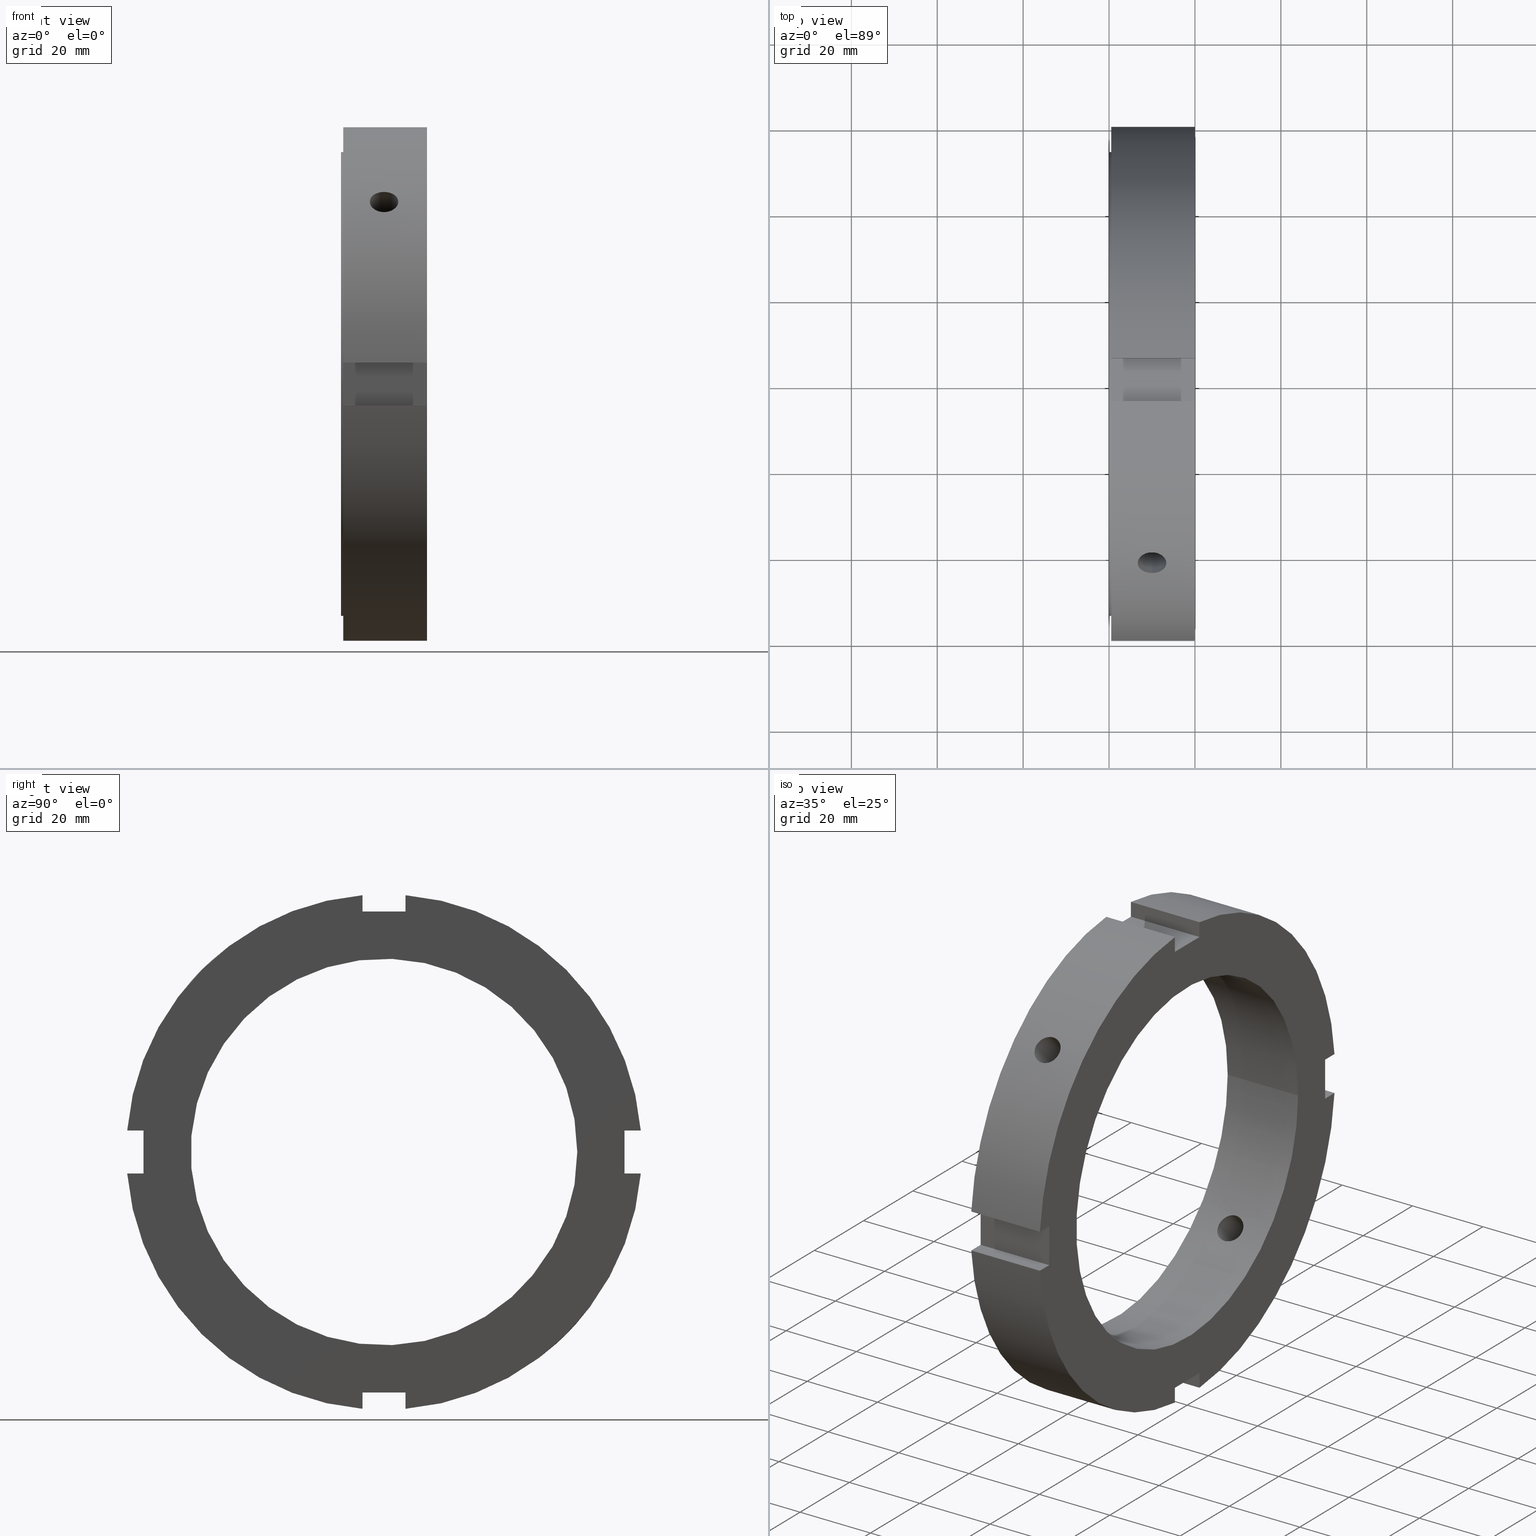
[diagram: canonical four-view strip — front | top / right | iso, engineering-drawing reading convention]
A machine part, canonical four-view strip (front | top / right | iso — engineering-drawing reading convention). The complete STEP part file that produces these views, byte-faithful:
ISO-10303-21;
HEADER;
/****************************************************************
 * Generated by software with PDE/Lib inside                    *
 * PDElib Version v51a, created Thu 01/14/2010                  *
 * ITI Transcendata (http://www.transcendata.com/)              *
 ****************************************************************/
FILE_DESCRIPTION((''),'2;1');
FILE_NAME('C:\\Users\\fkd-ct1n\\Desktop\\FKD ZM 90.stp','2014-07-16T12:00:12',('fkd-ct1n'),(''),'Autodesk Inventor 2011','Autodesk Inventor 2011','');
FILE_SCHEMA(('AUTOMOTIVE_DESIGN { 1 0 10303 214 1 1 1 1 }'));
ENDSEC;
DATA;
#5=APPLICATION_CONTEXT('automotive design');
#6=APPLICATION_PROTOCOL_DEFINITION('International Standard','automotive_design',2001,#5);
#7=PRODUCT_CONTEXT('',#5,'mechanical');
#8=PRODUCT('FKD ZM 90','FKD ZM 90',$,(#7));
#9=PRODUCT_RELATED_PRODUCT_CATEGORY('part',$,(#8));
#10=PRODUCT_DEFINITION_FORMATION('',$,#8);
#11=PRODUCT_DEFINITION_CONTEXT('part definition',#5,'design');
#12=PRODUCT_DEFINITION('',$,#10,#11);
#18=(NAMED_UNIT(*)PLANE_ANGLE_UNIT()SI_UNIT($,.RADIAN.));
#19=DIMENSIONAL_EXPONENTS(0.0,0.0,0.0,0.0,0.0,0.0,0.0);
#20=PLANE_ANGLE_MEASURE_WITH_UNIT(PLANE_ANGLE_MEASURE(0.017453292500000),#18);
#24=(CONVERSION_BASED_UNIT('DEGREE',#20)NAMED_UNIT(#19)PLANE_ANGLE_UNIT());
#28=(NAMED_UNIT(*)SI_UNIT($,.STERADIAN.)SOLID_ANGLE_UNIT());
#32=(LENGTH_UNIT()NAMED_UNIT(*)SI_UNIT(.MILLI.,.METRE.));
#34=UNCERTAINTY_MEASURE_WITH_UNIT(LENGTH_MEASURE(0.010000000000000),#32,'DISTANCE_ACCURACY_VALUE','');
#36=(GEOMETRIC_REPRESENTATION_CONTEXT(3)GLOBAL_UNCERTAINTY_ASSIGNED_CONTEXT((#34))GLOBAL_UNIT_ASSIGNED_CONTEXT((#24,#28,#32))REPRESENTATION_CONTEXT('None','None'));
#37=AXIS2_PLACEMENT_3D('',#38,#39,#40);
#38=CARTESIAN_POINT('',(0.0,0.0,0.0));
#39=DIRECTION('',(0.0,0.0,1.0));
#40=DIRECTION('',(1.0,0.0,0.0));
#41=SHAPE_REPRESENTATION('',(#37),#36);
#42=PRODUCT_DEFINITION_SHAPE('','',#12);
#43=SHAPE_DEFINITION_REPRESENTATION(#42,#41);
#49=(NAMED_UNIT(*)PLANE_ANGLE_UNIT()SI_UNIT($,.RADIAN.));
#50=DIMENSIONAL_EXPONENTS(0.0,0.0,0.0,0.0,0.0,0.0,0.0);
#51=PLANE_ANGLE_MEASURE_WITH_UNIT(PLANE_ANGLE_MEASURE(0.017453292500000),#49);
#55=(CONVERSION_BASED_UNIT('DEGREE',#51)NAMED_UNIT(#50)PLANE_ANGLE_UNIT());
#59=(NAMED_UNIT(*)SI_UNIT($,.STERADIAN.)SOLID_ANGLE_UNIT());
#63=(LENGTH_UNIT()NAMED_UNIT(*)SI_UNIT(.MILLI.,.METRE.));
#65=UNCERTAINTY_MEASURE_WITH_UNIT(LENGTH_MEASURE(0.000001000000000),#63,'DISTANCE_ACCURACY_VALUE','');
#67=(GEOMETRIC_REPRESENTATION_CONTEXT(3)GLOBAL_UNCERTAINTY_ASSIGNED_CONTEXT((#65))GLOBAL_UNIT_ASSIGNED_CONTEXT((#55,#59,#63))REPRESENTATION_CONTEXT('','3D'));
#68=CARTESIAN_POINT('',(9.999999999999991,-120.415945787922940,120.415945787922990));
#69=DIRECTION('',(0.0,-0.707106781186547,0.707106781186548));
#70=DIRECTION('',(1.0,0.0,0.0));
#71=AXIS2_PLACEMENT_3D('',#68,#69,#70);
#72=CYLINDRICAL_SURFACE('',#71,3.323500000000000);
#73=CARTESIAN_POINT('',(9.999999999999991,-44.711339125974661,40.011200351427682));
#74=VERTEX_POINT('',#73);
#75=CARTESIAN_POINT('',(9.999999999999989,-44.711339125974654,40.011200351427703));
#76=CARTESIAN_POINT('',(9.582602221231237,-44.711339125974654,40.011200351427703));
#77=CARTESIAN_POINT('',(9.137441260602060,-44.655743958096878,40.073599433775541));
#78=CARTESIAN_POINT('',(8.318624826173176,-44.428182373753664,40.325741790524454));
#79=CARTESIAN_POINT('',(7.944962107137318,-44.256042167446601,40.515304626723662));
#80=CARTESIAN_POINT('',(7.354899212241063,-43.855159526672516,40.948896934564978));
#81=CARTESIAN_POINT('',(7.099136467179797,-43.599645534778404,41.221821887794626));
#82=CARTESIAN_POINT('',(6.759934497809716,-43.032931829314769,41.813089681101580));
#83=CARTESIAN_POINT('',(6.676499999999991,-42.721551577050967,42.131262165334732));
#84=CARTESIAN_POINT('',(6.676499999999991,-42.131262165334689,42.721551577051009));
#85=CARTESIAN_POINT('',(6.759934497809716,-41.813089681101530,43.032931829314805));
#86=CARTESIAN_POINT('',(7.099136467179788,-41.221821887794604,43.599645534778439));
#87=CARTESIAN_POINT('',(7.354899212241064,-40.948896934564956,43.855159526672537));
#88=CARTESIAN_POINT('',(7.944962107137310,-40.515304626723641,44.256042167446623));
#89=CARTESIAN_POINT('',(8.318624826173158,-40.325741790524418,44.428182373753685));
#90=CARTESIAN_POINT('',(9.137441260602046,-40.073599433775506,44.655743958096906));
#91=CARTESIAN_POINT('',(9.582602221231236,-40.011200351427675,44.711339125974675));
#92=CARTESIAN_POINT('',(10.417397778768747,-40.011200351427675,44.711339125974675));
#93=CARTESIAN_POINT('',(10.862558739397937,-40.073599433775506,44.655743958096906));
#94=CARTESIAN_POINT('',(11.681375173826824,-40.325741790524418,44.428182373753685));
#95=CARTESIAN_POINT('',(12.055037892862670,-40.515304626723641,44.256042167446623));
#96=CARTESIAN_POINT('',(12.645100787758917,-40.948896934564956,43.855159526672537));
#97=CARTESIAN_POINT('',(12.900863532820193,-41.221821887794604,43.599645534778439));
#98=CARTESIAN_POINT('',(13.240065502190264,-41.813089681101530,43.032931829314805));
#99=CARTESIAN_POINT('',(13.323499999999990,-42.131262165334689,42.721551577051009));
#100=CARTESIAN_POINT('',(13.323499999999990,-42.721551577050967,42.131262165334732));
#101=CARTESIAN_POINT('',(13.240065502190264,-43.032931829314769,41.813089681101580));
#102=CARTESIAN_POINT('',(12.900863532820185,-43.599645534778404,41.221821887794626));
#103=CARTESIAN_POINT('',(12.645100787758921,-43.855159526672516,40.948896934564978));
#104=CARTESIAN_POINT('',(12.055037892862668,-44.256042167446601,40.515304626723662));
#105=CARTESIAN_POINT('',(11.681375173826808,-44.428182373753657,40.325741790524454));
#106=CARTESIAN_POINT('',(10.862558739397922,-44.655743958096863,40.073599433775541));
#107=CARTESIAN_POINT('',(10.417397778768741,-44.711339125974654,40.011200351427703));
#108=CARTESIAN_POINT('',(9.999999999999989,-44.711339125974654,40.011200351427703));
#109=B_SPLINE_CURVE_WITH_KNOTS('',3,(#75,#76,#77,#78,#79,#80,#81,#82,#83,#84,#85,#86,#87,#88,#89,#90,#91,#92,#93,#94,#95,#96,#97,#98,#99,#100,#101,#102,#103,#104,#105,#106,#107,#108),.UNSPECIFIED.,.T.,.U.,(4,2,2,2,2,2,2,2,2,2,2,2,2,2,2,2,4),(0.0,0.125219333630626,0.250438667261252,0.375657961027413,0.500877254793573,0.626096548559732,0.751315842325891,0.876535175956518,1.001754509587145,1.126973843217771,1.252193176848398,1.377412470614556,1.502631764380715,1.627851058146876,1.753070351913037,1.878289685543663,2.003509019174289),.UNSPECIFIED.);
#110=EDGE_CURVE('',#74,#74,#109,.T.);
#111=ORIENTED_EDGE('',*,*,#110,.F.);
#112=EDGE_LOOP('',(#111));
#113=FACE_OUTER_BOUND('',#112,.T.);
#114=CARTESIAN_POINT('',(9.999999999999991,-34.082973034355639,29.382834259808671));
#115=VERTEX_POINT('',#114);
#116=CARTESIAN_POINT('',(9.999999999999989,-34.082973034355632,29.382834259808686));
#117=CARTESIAN_POINT('',(10.417469380012360,-34.082973034355632,29.382834259808686));
#118=CARTESIAN_POINT('',(10.862661046645325,-34.028499303682750,29.446394307609175));
#119=CARTESIAN_POINT('',(11.681457677599141,-33.805037457042751,29.702665621787002));
#120=CARTESIAN_POINT('',(12.055075574637417,-33.635817881261559,29.895133630615518));
#121=CARTESIAN_POINT('',(12.645062902433306,-33.240450532774858,30.334134362726012));
#122=CARTESIAN_POINT('',(12.900814875656481,-32.987873059930429,30.609932573919274));
#123=CARTESIAN_POINT('',(13.240037625821708,-32.425269157335073,31.205282585973180));
#124=CARTESIAN_POINT('',(13.323499999999990,-32.115000285259555,31.524610021529718));
#125=CARTESIAN_POINT('',(13.323499999999990,-31.524610021529682,32.115000285259597));
#126=CARTESIAN_POINT('',(13.240037625821710,-31.205282585973141,32.425269157335109));
#127=CARTESIAN_POINT('',(12.900814875656488,-30.609932573919231,32.987873059930457));
#128=CARTESIAN_POINT('',(12.645062902433304,-30.334134362725980,33.240450532774879));
#129=CARTESIAN_POINT('',(12.055075574637421,-29.895133630615483,33.635817881261588));
#130=CARTESIAN_POINT('',(11.681457677599148,-29.702665621786963,33.805037457042793));
#131=CARTESIAN_POINT('',(10.862661046645332,-29.446394307609133,34.028499303682786));
#132=CARTESIAN_POINT('',(10.417469380012365,-29.382834259808650,34.082973034355661));
#133=CARTESIAN_POINT('',(9.582530619987617,-29.382834259808650,34.082973034355661));
#134=CARTESIAN_POINT('',(9.137338953354650,-29.446394307609136,34.028499303682786));
#135=CARTESIAN_POINT('',(8.318542322400836,-29.702665621786963,33.805037457042793));
#136=CARTESIAN_POINT('',(7.944924425362562,-29.895133630615483,33.635817881261588));
#137=CARTESIAN_POINT('',(7.354937097566678,-30.334134362725980,33.240450532774879));
#138=CARTESIAN_POINT('',(7.099185124343492,-30.609932573919231,32.987873059930457));
#139=CARTESIAN_POINT('',(6.759962374178270,-31.205282585973141,32.425269157335109));
#140=CARTESIAN_POINT('',(6.676499999999991,-31.524610021529682,32.115000285259597));
#141=CARTESIAN_POINT('',(6.676499999999991,-32.115000285259555,31.524610021529718));
#142=CARTESIAN_POINT('',(6.759962374178273,-32.425269157335073,31.205282585973180));
#143=CARTESIAN_POINT('',(7.099185124343500,-32.987873059930429,30.609932573919266));
#144=CARTESIAN_POINT('',(7.354937097566676,-33.240450532774858,30.334134362726012));
#145=CARTESIAN_POINT('',(7.944924425362563,-33.635817881261559,29.895133630615518));
#146=CARTESIAN_POINT('',(8.318542322400839,-33.805037457042751,29.702665621787002));
#147=CARTESIAN_POINT('',(9.137338953354654,-34.028499303682750,29.446394307609175));
#148=CARTESIAN_POINT('',(9.582530619987619,-34.082973034355632,29.382834259808686));
#149=CARTESIAN_POINT('',(9.999999999999993,-34.082973034355632,29.382834259808686));
#150=B_SPLINE_CURVE_WITH_KNOTS('',3,(#116,#117,#118,#119,#120,#121,#122,#123,#124,#125,#126,#127,#128,#129,#130,#131,#132,#133,#134,#135,#136,#137,#138,#139,#140,#141,#142,#143,#144,#145,#146,#147,#148,#149),.UNSPECIFIED.,.T.,.U.,(4,2,2,2,2,2,2,2,2,2,2,2,2,2,2,2,4),(0.0,0.125240814003712,0.250481628007423,0.375722315716397,0.500963003425371,0.626203691134343,0.751444378843316,0.876685192847028,1.001926006850740,1.127166820854452,1.252407634858164,1.377648322567137,1.502889010276109,1.628129697985083,1.753370385694057,1.878611199697768,2.003852013701480),.UNSPECIFIED.);
#151=EDGE_CURVE('',#115,#115,#150,.T.);
#152=ORIENTED_EDGE('',*,*,#151,.F.);
#153=EDGE_LOOP('',(#152));
#154=FACE_BOUND('',#153,.T.);
#155=ADVANCED_FACE('',(#113,#154),#72,.F.);
#156=CARTESIAN_POINT('',(9.999999999999991,120.415945787922960,-120.415945787922980));
#157=DIRECTION('',(0.0,-0.707106781186547,0.707106781186548));
#158=DIRECTION('',(1.0,0.0,0.0));
#159=AXIS2_PLACEMENT_3D('',#156,#157,#158);
#160=CYLINDRICAL_SURFACE('',#159,3.323500000000000);
#161=CARTESIAN_POINT('',(9.999999999999991,40.011200351427675,-44.711339125974668));
#162=VERTEX_POINT('',#161);
#163=CARTESIAN_POINT('',(9.999999999999993,40.011200351427689,-44.711339125974668));
#164=CARTESIAN_POINT('',(10.417397778768747,40.011200351427689,-44.711339125974668));
#165=CARTESIAN_POINT('',(10.862558739397937,40.073599433775520,-44.655743958096885));
#166=CARTESIAN_POINT('',(11.681375173826822,40.325741790524432,-44.428182373753664));
#167=CARTESIAN_POINT('',(12.055037892862670,40.515304626723641,-44.256042167446608));
#168=CARTESIAN_POINT('',(12.645100787758919,40.948896934564971,-43.855159526672523));
#169=CARTESIAN_POINT('',(12.900863532820193,41.221821887794619,-43.599645534778418));
#170=CARTESIAN_POINT('',(13.240065502190262,41.813089681101552,-43.032931829314791));
#171=CARTESIAN_POINT('',(13.323499999999990,42.131262165334711,-42.721551577050995));
#172=CARTESIAN_POINT('',(13.323499999999990,42.721551577050988,-42.131262165334711));
#173=CARTESIAN_POINT('',(13.240065502190264,43.032931829314791,-41.813089681101559));
#174=CARTESIAN_POINT('',(12.900863532820185,43.599645534778418,-41.221821887794611));
#175=CARTESIAN_POINT('',(12.645100787758922,43.855159526672537,-40.948896934564956));
#176=CARTESIAN_POINT('',(12.055037892862668,44.256042167446623,-40.515304626723641));
#177=CARTESIAN_POINT('',(11.681375173826812,44.428182373753685,-40.325741790524454));
#178=CARTESIAN_POINT('',(10.862558739397922,44.655743958096899,-40.073599433775541));
#179=CARTESIAN_POINT('',(10.417397778768745,44.711339125974661,-40.011200351427689));
#180=CARTESIAN_POINT('',(9.582602221231239,44.711339125974661,-40.011200351427689));
#181=CARTESIAN_POINT('',(9.137441260602060,44.655743958096892,-40.073599433775527));
#182=CARTESIAN_POINT('',(8.318624826173174,44.428182373753685,-40.325741790524447));
#183=CARTESIAN_POINT('',(7.944962107137315,44.256042167446623,-40.515304626723641));
#184=CARTESIAN_POINT('',(7.354899212241061,43.855159526672537,-40.948896934564956));
#185=CARTESIAN_POINT('',(7.099136467179795,43.599645534778418,-41.221821887794611));
#186=CARTESIAN_POINT('',(6.759934497809716,43.032931829314791,-41.813089681101559));
#187=CARTESIAN_POINT('',(6.676499999999991,42.721551577050988,-42.131262165334711));
#188=CARTESIAN_POINT('',(6.676499999999991,42.131262165334711,-42.721551577050995));
#189=CARTESIAN_POINT('',(6.759934497809720,41.813089681101552,-43.032931829314791));
#190=CARTESIAN_POINT('',(7.099136467179791,41.221821887794619,-43.599645534778418));
#191=CARTESIAN_POINT('',(7.354899212241062,40.948896934564971,-43.855159526672523));
#192=CARTESIAN_POINT('',(7.944962107137311,40.515304626723641,-44.256042167446608));
#193=CARTESIAN_POINT('',(8.318624826173162,40.325741790524432,-44.428182373753664));
#194=CARTESIAN_POINT('',(9.137441260602049,40.073599433775520,-44.655743958096885));
#195=CARTESIAN_POINT('',(9.582602221231237,40.011200351427682,-44.711339125974668));
#196=CARTESIAN_POINT('',(9.999999999999993,40.011200351427682,-44.711339125974668));
#197=B_SPLINE_CURVE_WITH_KNOTS('',3,(#163,#164,#165,#166,#167,#168,#169,#170,#171,#172,#173,#174,#175,#176,#177,#178,#179,#180,#181,#182,#183,#184,#185,#186,#187,#188,#189,#190,#191,#192,#193,#194,#195,#196),.UNSPECIFIED.,.T.,.U.,(4,2,2,2,2,2,2,2,2,2,2,2,2,2,2,2,4),(0.0,0.125219333630626,0.250438667261253,0.375657961027412,0.500877254793571,0.626096548559732,0.751315842325893,0.876535175956519,1.001754509587145,1.126973843217770,1.252193176848396,1.377412470614557,1.502631764380718,1.627851058146877,1.753070351913037,1.878289685543663,2.003509019174289),.UNSPECIFIED.);
#198=EDGE_CURVE('',#162,#162,#197,.T.);
#199=ORIENTED_EDGE('',*,*,#198,.F.);
#200=EDGE_LOOP('',(#199));
#201=FACE_OUTER_BOUND('',#200,.T.);
#202=CARTESIAN_POINT('',(9.999999999999991,29.382834259808664,-34.082973034355646));
#203=VERTEX_POINT('',#202);
#204=CARTESIAN_POINT('',(9.999999999999991,29.382834259808664,-34.082973034355646));
#205=CARTESIAN_POINT('',(9.582530619987617,29.382834259808664,-34.082973034355646));
#206=CARTESIAN_POINT('',(9.137338953354650,29.446394307609154,-34.028499303682771));
#207=CARTESIAN_POINT('',(8.318542322400834,29.702665621786977,-33.805037457042772));
#208=CARTESIAN_POINT('',(7.944924425362561,29.895133630615511,-33.635817881261573));
#209=CARTESIAN_POINT('',(7.354937097566678,30.334134362726004,-33.240450532774858));
#210=CARTESIAN_POINT('',(7.099185124343491,30.609932573919259,-32.987873059930443));
#211=CARTESIAN_POINT('',(6.759962374178270,31.205282585973162,-32.425269157335094));
#212=CARTESIAN_POINT('',(6.676499999999991,31.524610021529700,-32.115000285259576));
#213=CARTESIAN_POINT('',(6.676499999999991,32.115000285259576,-31.524610021529710));
#214=CARTESIAN_POINT('',(6.759962374178274,32.425269157335080,-31.205282585973173));
#215=CARTESIAN_POINT('',(7.099185124343497,32.987873059930436,-30.609932573919263));
#216=CARTESIAN_POINT('',(7.354937097566678,33.240450532774858,-30.334134362726004));
#217=CARTESIAN_POINT('',(7.944924425362561,33.635817881261559,-29.895133630615518));
#218=CARTESIAN_POINT('',(8.318542322400829,33.805037457042772,-29.702665621786991));
#219=CARTESIAN_POINT('',(9.137338953354643,34.028499303682764,-29.446394307609161));
#220=CARTESIAN_POINT('',(9.582530619987617,34.082973034355639,-29.382834259808671));
#221=CARTESIAN_POINT('',(10.417469380012365,34.082973034355639,-29.382834259808671));
#222=CARTESIAN_POINT('',(10.862661046645336,34.028499303682771,-29.446394307609157));
#223=CARTESIAN_POINT('',(11.681457677599154,33.805037457042772,-29.702665621786984));
#224=CARTESIAN_POINT('',(12.055075574637421,33.635817881261559,-29.895133630615518));
#225=CARTESIAN_POINT('',(12.645062902433303,33.240450532774858,-30.334134362726004));
#226=CARTESIAN_POINT('',(12.900814875656486,32.987873059930436,-30.609932573919263));
#227=CARTESIAN_POINT('',(13.240037625821708,32.425269157335087,-31.205282585973162));
#228=CARTESIAN_POINT('',(13.323499999999990,32.115000285259576,-31.524610021529710));
#229=CARTESIAN_POINT('',(13.323499999999990,31.524610021529700,-32.115000285259576));
#230=CARTESIAN_POINT('',(13.240037625821714,31.205282585973158,-32.425269157335094));
#231=CARTESIAN_POINT('',(12.900814875656494,30.609932573919259,-32.987873059930436));
#232=CARTESIAN_POINT('',(12.645062902433306,30.334134362726004,-33.240450532774858));
#233=CARTESIAN_POINT('',(12.055075574637424,29.895133630615511,-33.635817881261573));
#234=CARTESIAN_POINT('',(11.681457677599152,29.702665621786984,-33.805037457042772));
#235=CARTESIAN_POINT('',(10.862661046645332,29.446394307609150,-34.028499303682771));
#236=CARTESIAN_POINT('',(10.417469380012365,29.382834259808664,-34.082973034355646));
#237=CARTESIAN_POINT('',(9.999999999999991,29.382834259808664,-34.082973034355646));
#238=B_SPLINE_CURVE_WITH_KNOTS('',3,(#204,#205,#206,#207,#208,#209,#210,#211,#212,#213,#214,#215,#216,#217,#218,#219,#220,#221,#222,#223,#224,#225,#226,#227,#228,#229,#230,#231,#232,#233,#234,#235,#236,#237),.UNSPECIFIED.,.T.,.U.,(4,2,2,2,2,2,2,2,2,2,2,2,2,2,2,2,4),(0.0,0.125240814003712,0.250481628007424,0.375722315716397,0.500963003425369,0.626203691134341,0.751444378843314,0.876685192847026,1.001926006850738,1.127166820854450,1.252407634858162,1.377648322567135,1.502889010276107,1.628129697985079,1.753370385694052,1.878611199697764,2.003852013701476),.UNSPECIFIED.);
#239=EDGE_CURVE('',#203,#203,#238,.T.);
#240=ORIENTED_EDGE('',*,*,#239,.F.);
#241=EDGE_LOOP('',(#240));
#242=FACE_BOUND('',#241,.T.);
#243=ADVANCED_FACE('',(#201,#242),#160,.F.);
#244=CARTESIAN_POINT('',(19.999999999999989,-5.000000000000008,-56.0));
#245=DIRECTION('',(0.0,-1.0,0.0));
#246=DIRECTION('',(-1.0,0.0,0.0));
#247=AXIS2_PLACEMENT_3D('',#244,#245,#246);
#248=PLANE('',#247);
#249=CARTESIAN_POINT('',(0.499999999999985,-5.000000000000008,-56.0));
#250=VERTEX_POINT('',#249);
#251=CARTESIAN_POINT('',(0.499999999999984,-5.000000000000007,-59.791303715506992));
#252=VERTEX_POINT('',#251);
#253=CARTESIAN_POINT('',(0.499999999999985,-5.000000000000010,-56.0));
#254=DIRECTION('',(0.0,0.0,-1.0));
#255=VECTOR('',#254,3.791303715506992);
#256=LINE('',#253,#255);
#257=EDGE_CURVE('',#250,#252,#256,.T.);
#258=ORIENTED_EDGE('',*,*,#257,.F.);
#259=CARTESIAN_POINT('',(19.999999999999989,-5.000000000000008,-56.0));
#260=VERTEX_POINT('',#259);
#261=CARTESIAN_POINT('',(19.999999999999989,-5.000000000000008,-56.0));
#262=DIRECTION('',(-1.0,0.0,0.0));
#263=VECTOR('',#262,19.500000000000004);
#264=LINE('',#261,#263);
#265=EDGE_CURVE('',#260,#250,#264,.T.);
#266=ORIENTED_EDGE('',*,*,#265,.F.);
#267=CARTESIAN_POINT('',(19.999999999999989,-5.000000000000007,-59.791303715506992));
#268=VERTEX_POINT('',#267);
#269=CARTESIAN_POINT('',(19.999999999999989,-5.000000000000011,-59.791303715506992));
#270=DIRECTION('',(0.0,0.0,1.0));
#271=VECTOR('',#270,3.791303715506992);
#272=LINE('',#269,#271);
#273=EDGE_CURVE('',#268,#260,#272,.T.);
#274=ORIENTED_EDGE('',*,*,#273,.F.);
#275=CARTESIAN_POINT('',(0.499999999999984,-5.000000000000008,-59.791303715506992));
#276=DIRECTION('',(1.0,0.0,0.0));
#277=VECTOR('',#276,19.500000000000007);
#278=LINE('',#275,#277);
#279=EDGE_CURVE('',#252,#268,#278,.T.);
#280=ORIENTED_EDGE('',*,*,#279,.F.);
#281=EDGE_LOOP('',(#258,#266,#274,#280));
#282=FACE_OUTER_BOUND('',#281,.T.);
#283=ADVANCED_FACE('',(#282),#248,.F.);
#284=CARTESIAN_POINT('',(19.999999999999989,4.999999999999986,-60.0));
#285=DIRECTION('',(0.0,1.0,0.0));
#286=DIRECTION('',(1.0,0.0,0.0));
#287=AXIS2_PLACEMENT_3D('',#284,#285,#286);
#288=PLANE('',#287);
#289=CARTESIAN_POINT('',(0.499999999999984,4.999999999999985,-59.791303715506992));
#290=VERTEX_POINT('',#289);
#291=CARTESIAN_POINT('',(0.499999999999985,4.999999999999988,-56.0));
#292=VERTEX_POINT('',#291);
#293=CARTESIAN_POINT('',(0.499999999999985,4.999999999999981,-59.791303715506992));
#294=DIRECTION('',(0.0,0.0,1.0));
#295=VECTOR('',#294,3.791303715506992);
#296=LINE('',#293,#295);
#297=EDGE_CURVE('',#290,#292,#296,.T.);
#298=ORIENTED_EDGE('',*,*,#297,.F.);
#299=CARTESIAN_POINT('',(19.999999999999989,4.999999999999985,-59.791303715506992));
#300=VERTEX_POINT('',#299);
#301=CARTESIAN_POINT('',(19.999999999999989,4.999999999999985,-59.791303715506992));
#302=DIRECTION('',(-1.0,0.0,0.0));
#303=VECTOR('',#302,19.500000000000007);
#304=LINE('',#301,#303);
#305=EDGE_CURVE('',#300,#290,#304,.T.);
#306=ORIENTED_EDGE('',*,*,#305,.F.);
#307=CARTESIAN_POINT('',(19.999999999999989,4.999999999999988,-56.0));
#308=VERTEX_POINT('',#307);
#309=CARTESIAN_POINT('',(19.999999999999989,4.999999999999983,-56.0));
#310=DIRECTION('',(0.0,0.0,-1.0));
#311=VECTOR('',#310,3.791303715506992);
#312=LINE('',#309,#311);
#313=EDGE_CURVE('',#308,#300,#312,.T.);
#314=ORIENTED_EDGE('',*,*,#313,.F.);
#315=CARTESIAN_POINT('',(19.999999999999989,4.999999999999988,-56.0));
#316=DIRECTION('',(-1.0,0.0,0.0));
#317=VECTOR('',#316,19.500000000000004);
#318=LINE('',#315,#317);
#319=EDGE_CURVE('',#308,#292,#318,.T.);
#320=ORIENTED_EDGE('',*,*,#319,.T.);
#321=EDGE_LOOP('',(#298,#306,#314,#320));
#322=FACE_OUTER_BOUND('',#321,.T.);
#323=ADVANCED_FACE('',(#322),#288,.F.);
#324=CARTESIAN_POINT('',(19.999999999999989,4.999999999999988,-56.0));
#325=DIRECTION('',(0.0,0.0,1.0));
#326=DIRECTION('',(0.0,-1.0,0.0));
#327=AXIS2_PLACEMENT_3D('',#324,#325,#326);
#328=PLANE('',#327);
#329=CARTESIAN_POINT('',(0.499999999999985,4.999999999999986,-55.999999999999993));
#330=DIRECTION('',(0.0,-1.0,0.0));
#331=VECTOR('',#330,9.999999999999993);
#332=LINE('',#329,#331);
#333=EDGE_CURVE('',#292,#250,#332,.T.);
#334=ORIENTED_EDGE('',*,*,#333,.F.);
#335=ORIENTED_EDGE('',*,*,#319,.F.);
#336=CARTESIAN_POINT('',(19.999999999999989,-5.000000000000007,-55.999999999999993));
#337=DIRECTION('',(0.0,1.0,0.0));
#338=VECTOR('',#337,9.999999999999996);
#339=LINE('',#336,#338);
#340=EDGE_CURVE('',#260,#308,#339,.T.);
#341=ORIENTED_EDGE('',*,*,#340,.F.);
#342=ORIENTED_EDGE('',*,*,#265,.T.);
#343=EDGE_LOOP('',(#334,#335,#341,#342));
#344=FACE_OUTER_BOUND('',#343,.T.);
#345=ADVANCED_FACE('',(#344),#328,.F.);
#346=CARTESIAN_POINT('',(19.999999999999989,-56.0,5.000000000000004));
#347=DIRECTION('',(0.0,0.0,1.0));
#348=DIRECTION('',(-1.0,0.0,0.0));
#349=AXIS2_PLACEMENT_3D('',#346,#347,#348);
#350=PLANE('',#349);
#351=CARTESIAN_POINT('',(0.499999999999985,-56.0,5.000000000000004));
#352=VERTEX_POINT('',#351);
#353=CARTESIAN_POINT('',(0.499999999999984,-59.791303715506992,5.000000000000004));
#354=VERTEX_POINT('',#353);
#355=CARTESIAN_POINT('',(0.499999999999985,-55.999999999999993,5.000000000000004));
#356=DIRECTION('',(0.0,-1.0,0.0));
#357=VECTOR('',#356,3.791303715506999);
#358=LINE('',#355,#357);
#359=EDGE_CURVE('',#352,#354,#358,.T.);
#360=ORIENTED_EDGE('',*,*,#359,.F.);
#361=CARTESIAN_POINT('',(19.999999999999989,-56.0,5.000000000000004));
#362=VERTEX_POINT('',#361);
#363=CARTESIAN_POINT('',(19.999999999999989,-56.0,5.000000000000004));
#364=DIRECTION('',(-1.0,0.0,0.0));
#365=VECTOR('',#364,19.500000000000004);
#366=LINE('',#363,#365);
#367=EDGE_CURVE('',#362,#352,#366,.T.);
#368=ORIENTED_EDGE('',*,*,#367,.F.);
#369=CARTESIAN_POINT('',(19.999999999999989,-59.791303715506992,5.000000000000004));
#370=VERTEX_POINT('',#369);
#371=CARTESIAN_POINT('',(19.999999999999989,-59.791303715506992,5.000000000000004));
#372=DIRECTION('',(0.0,1.0,0.0));
#373=VECTOR('',#372,3.791303715506992);
#374=LINE('',#371,#373);
#375=EDGE_CURVE('',#370,#362,#374,.T.);
#376=ORIENTED_EDGE('',*,*,#375,.F.);
#377=CARTESIAN_POINT('',(0.499999999999984,-59.791303715506992,5.000000000000004));
#378=DIRECTION('',(1.0,0.0,0.0));
#379=VECTOR('',#378,19.500000000000007);
#380=LINE('',#377,#379);
#381=EDGE_CURVE('',#354,#370,#380,.T.);
#382=ORIENTED_EDGE('',*,*,#381,.F.);
#383=EDGE_LOOP('',(#360,#368,#376,#382));
#384=FACE_OUTER_BOUND('',#383,.T.);
#385=ADVANCED_FACE('',(#384),#350,.F.);
#386=CARTESIAN_POINT('',(19.999999999999989,-60.0,-4.999999999999989));
#387=DIRECTION('',(0.0,0.0,-1.0));
#388=DIRECTION('',(1.0,0.0,0.0));
#389=AXIS2_PLACEMENT_3D('',#386,#387,#388);
#390=PLANE('',#389);
#391=CARTESIAN_POINT('',(0.499999999999984,-59.791303715506992,-4.999999999999989));
#392=VERTEX_POINT('',#391);
#393=CARTESIAN_POINT('',(0.499999999999985,-56.0,-4.999999999999990));
#394=VERTEX_POINT('',#393);
#395=CARTESIAN_POINT('',(0.499999999999985,-59.791303715506984,-4.999999999999989));
#396=DIRECTION('',(0.0,1.0,0.0));
#397=VECTOR('',#396,3.791303715506992);
#398=LINE('',#395,#397);
#399=EDGE_CURVE('',#392,#394,#398,.T.);
#400=ORIENTED_EDGE('',*,*,#399,.F.);
#401=CARTESIAN_POINT('',(19.999999999999989,-59.791303715506992,-4.999999999999989));
#402=VERTEX_POINT('',#401);
#403=CARTESIAN_POINT('',(19.999999999999989,-59.791303715506992,-4.999999999999989));
#404=DIRECTION('',(-1.0,0.0,0.0));
#405=VECTOR('',#404,19.500000000000007);
#406=LINE('',#403,#405);
#407=EDGE_CURVE('',#402,#392,#406,.T.);
#408=ORIENTED_EDGE('',*,*,#407,.F.);
#409=CARTESIAN_POINT('',(19.999999999999989,-56.0,-4.999999999999990));
#410=VERTEX_POINT('',#409);
#411=CARTESIAN_POINT('',(19.999999999999989,-56.0,-4.999999999999990));
#412=DIRECTION('',(0.0,-1.0,0.0));
#413=VECTOR('',#412,3.791303715506992);
#414=LINE('',#411,#413);
#415=EDGE_CURVE('',#410,#402,#414,.T.);
#416=ORIENTED_EDGE('',*,*,#415,.F.);
#417=CARTESIAN_POINT('',(19.999999999999989,-56.0,-4.999999999999990));
#418=DIRECTION('',(-1.0,0.0,0.0));
#419=VECTOR('',#418,19.500000000000004);
#420=LINE('',#417,#419);
#421=EDGE_CURVE('',#410,#394,#420,.T.);
#422=ORIENTED_EDGE('',*,*,#421,.T.);
#423=EDGE_LOOP('',(#400,#408,#416,#422));
#424=FACE_OUTER_BOUND('',#423,.T.);
#425=ADVANCED_FACE('',(#424),#390,.F.);
#426=CARTESIAN_POINT('',(19.999999999999989,-56.0,-4.999999999999990));
#427=DIRECTION('',(0.0,1.0,0.0));
#428=DIRECTION('',(0.0,0.0,1.0));
#429=AXIS2_PLACEMENT_3D('',#426,#427,#428);
#430=PLANE('',#429);
#431=CARTESIAN_POINT('',(0.499999999999985,-56.0,-4.999999999999991));
#432=DIRECTION('',(0.0,0.0,1.0));
#433=VECTOR('',#432,9.999999999999996);
#434=LINE('',#431,#433);
#435=EDGE_CURVE('',#394,#352,#434,.T.);
#436=ORIENTED_EDGE('',*,*,#435,.F.);
#437=ORIENTED_EDGE('',*,*,#421,.F.);
#438=CARTESIAN_POINT('',(19.999999999999989,-56.0,5.000000000000004));
#439=DIRECTION('',(0.0,0.0,-1.0));
#440=VECTOR('',#439,9.999999999999996);
#441=LINE('',#438,#440);
#442=EDGE_CURVE('',#362,#410,#441,.T.);
#443=ORIENTED_EDGE('',*,*,#442,.F.);
#444=ORIENTED_EDGE('',*,*,#367,.T.);
#445=EDGE_LOOP('',(#436,#437,#443,#444));
#446=FACE_OUTER_BOUND('',#445,.T.);
#447=ADVANCED_FACE('',(#446),#430,.F.);
#448=CARTESIAN_POINT('',(19.999999999999989,5.000000000000001,56.0));
#449=DIRECTION('',(0.0,1.0,0.0));
#450=DIRECTION('',(-1.0,0.0,0.0));
#451=AXIS2_PLACEMENT_3D('',#448,#449,#450);
#452=PLANE('',#451);
#453=CARTESIAN_POINT('',(0.499999999999985,5.000000000000001,56.0));
#454=VERTEX_POINT('',#453);
#455=CARTESIAN_POINT('',(0.499999999999984,5.0,59.791303715506992));
#456=VERTEX_POINT('',#455);
#457=CARTESIAN_POINT('',(0.499999999999985,4.999999999999998,56.0));
#458=DIRECTION('',(0.0,0.0,1.0));
#459=VECTOR('',#458,3.791303715506992);
#460=LINE('',#457,#459);
#461=EDGE_CURVE('',#454,#456,#460,.T.);
#462=ORIENTED_EDGE('',*,*,#461,.F.);
#463=CARTESIAN_POINT('',(19.999999999999989,5.000000000000001,56.0));
#464=VERTEX_POINT('',#463);
#465=CARTESIAN_POINT('',(19.999999999999989,5.000000000000001,56.0));
#466=DIRECTION('',(-1.0,0.0,0.0));
#467=VECTOR('',#466,19.500000000000004);
#468=LINE('',#465,#467);
#469=EDGE_CURVE('',#464,#454,#468,.T.);
#470=ORIENTED_EDGE('',*,*,#469,.F.);
#471=CARTESIAN_POINT('',(19.999999999999989,5.0,59.791303715506992));
#472=VERTEX_POINT('',#471);
#473=CARTESIAN_POINT('',(19.999999999999989,4.999999999999997,59.791303715506992));
#474=DIRECTION('',(0.0,0.0,-1.0));
#475=VECTOR('',#474,3.791303715506992);
#476=LINE('',#473,#475);
#477=EDGE_CURVE('',#472,#464,#476,.T.);
#478=ORIENTED_EDGE('',*,*,#477,.F.);
#479=CARTESIAN_POINT('',(0.499999999999984,5.000000000000001,59.791303715506992));
#480=DIRECTION('',(1.0,0.0,0.0));
#481=VECTOR('',#480,19.500000000000007);
#482=LINE('',#479,#481);
#483=EDGE_CURVE('',#456,#472,#482,.T.);
#484=ORIENTED_EDGE('',*,*,#483,.F.);
#485=EDGE_LOOP('',(#462,#470,#478,#484));
#486=FACE_OUTER_BOUND('',#485,.T.);
#487=ADVANCED_FACE('',(#486),#452,.F.);
#488=CARTESIAN_POINT('',(19.999999999999989,-4.999999999999993,60.0));
#489=DIRECTION('',(0.0,-1.0,0.0));
#490=DIRECTION('',(1.0,0.0,0.0));
#491=AXIS2_PLACEMENT_3D('',#488,#489,#490);
#492=PLANE('',#491);
#493=CARTESIAN_POINT('',(0.499999999999984,-4.999999999999992,59.791303715506992));
#494=VERTEX_POINT('',#493);
#495=CARTESIAN_POINT('',(0.499999999999985,-4.999999999999994,56.0));
#496=VERTEX_POINT('',#495);
#497=CARTESIAN_POINT('',(0.499999999999985,-4.999999999999989,59.791303715506992));
#498=DIRECTION('',(0.0,0.0,-1.0));
#499=VECTOR('',#498,3.791303715506992);
#500=LINE('',#497,#499);
#501=EDGE_CURVE('',#494,#496,#500,.T.);
#502=ORIENTED_EDGE('',*,*,#501,.F.);
#503=CARTESIAN_POINT('',(19.999999999999989,-4.999999999999992,59.791303715506992));
#504=VERTEX_POINT('',#503);
#505=CARTESIAN_POINT('',(19.999999999999989,-4.999999999999992,59.791303715506992));
#506=DIRECTION('',(-1.0,0.0,0.0));
#507=VECTOR('',#506,19.500000000000007);
#508=LINE('',#505,#507);
#509=EDGE_CURVE('',#504,#494,#508,.T.);
#510=ORIENTED_EDGE('',*,*,#509,.F.);
#511=CARTESIAN_POINT('',(19.999999999999989,-4.999999999999994,56.0));
#512=VERTEX_POINT('',#511);
#513=CARTESIAN_POINT('',(19.999999999999989,-4.999999999999990,56.0));
#514=DIRECTION('',(0.0,0.0,1.0));
#515=VECTOR('',#514,3.791303715506992);
#516=LINE('',#513,#515);
#517=EDGE_CURVE('',#512,#504,#516,.T.);
#518=ORIENTED_EDGE('',*,*,#517,.F.);
#519=CARTESIAN_POINT('',(19.999999999999989,-4.999999999999994,56.0));
#520=DIRECTION('',(-1.0,0.0,0.0));
#521=VECTOR('',#520,19.500000000000004);
#522=LINE('',#519,#521);
#523=EDGE_CURVE('',#512,#496,#522,.T.);
#524=ORIENTED_EDGE('',*,*,#523,.T.);
#525=EDGE_LOOP('',(#502,#510,#518,#524));
#526=FACE_OUTER_BOUND('',#525,.T.);
#527=ADVANCED_FACE('',(#526),#492,.F.);
#528=CARTESIAN_POINT('',(19.999999999999989,-4.999999999999994,56.0));
#529=DIRECTION('',(0.0,0.0,-1.0));
#530=DIRECTION('',(0.0,1.0,0.0));
#531=AXIS2_PLACEMENT_3D('',#528,#529,#530);
#532=PLANE('',#531);
#533=CARTESIAN_POINT('',(0.499999999999985,-4.999999999999993,56.0));
#534=DIRECTION('',(0.0,1.0,0.0));
#535=VECTOR('',#534,9.999999999999993);
#536=LINE('',#533,#535);
#537=EDGE_CURVE('',#496,#454,#536,.T.);
#538=ORIENTED_EDGE('',*,*,#537,.F.);
#539=ORIENTED_EDGE('',*,*,#523,.F.);
#540=CARTESIAN_POINT('',(19.999999999999989,5.0,56.0));
#541=DIRECTION('',(0.0,-1.0,0.0));
#542=VECTOR('',#541,9.999999999999996);
#543=LINE('',#540,#542);
#544=EDGE_CURVE('',#464,#512,#543,.T.);
#545=ORIENTED_EDGE('',*,*,#544,.F.);
#546=ORIENTED_EDGE('',*,*,#469,.T.);
#547=EDGE_LOOP('',(#538,#539,#545,#546));
#548=FACE_OUTER_BOUND('',#547,.T.);
#549=ADVANCED_FACE('',(#548),#532,.F.);
#550=CARTESIAN_POINT('',(10.249999999999986,0.0,0.0));
#551=DIRECTION('',(1.0,0.0,0.0));
#552=DIRECTION('',(0.0,1.0,0.0));
#553=AXIS2_PLACEMENT_3D('',#550,#551,#552);
#554=CYLINDRICAL_SURFACE('',#553,60.0);
#555=ORIENTED_EDGE('',*,*,#483,.T.);
#556=CARTESIAN_POINT('',(19.999999999999989,59.791303715506992,4.999999999999996));
#557=VERTEX_POINT('',#556);
#558=CARTESIAN_POINT('',(19.999999999999986,0.0,0.0));
#559=DIRECTION('',(1.0,0.0,0.0));
#560=DIRECTION('',(0.0,1.0,0.0));
#561=AXIS2_PLACEMENT_3D('',#558,#559,#560);
#562=CIRCLE('',#561,60.0);
#563=EDGE_CURVE('',#557,#472,#562,.T.);
#564=ORIENTED_EDGE('',*,*,#563,.F.);
#565=CARTESIAN_POINT('',(0.499999999999984,59.791303715506992,4.999999999999996));
#566=VERTEX_POINT('',#565);
#567=CARTESIAN_POINT('',(19.999999999999989,59.791303715506992,4.999999999999996));
#568=DIRECTION('',(-1.0,0.0,0.0));
#569=VECTOR('',#568,19.500000000000007);
#570=LINE('',#567,#569);
#571=EDGE_CURVE('',#557,#566,#570,.T.);
#572=ORIENTED_EDGE('',*,*,#571,.T.);
#573=CARTESIAN_POINT('',(0.499999999999985,0.0,0.0));
#574=DIRECTION('',(1.0,0.0,0.0));
#575=DIRECTION('',(0.0,1.0,0.0));
#576=AXIS2_PLACEMENT_3D('',#573,#574,#575);
#577=CIRCLE('',#576,60.0);
#578=EDGE_CURVE('',#566,#456,#577,.T.);
#579=ORIENTED_EDGE('',*,*,#578,.T.);
#580=EDGE_LOOP('',(#555,#564,#572,#579));
#581=FACE_OUTER_BOUND('',#580,.T.);
#582=ADVANCED_FACE('',(#581),#554,.T.);
#583=CARTESIAN_POINT('',(10.249999999999986,0.0,0.0));
#584=DIRECTION('',(1.0,0.0,0.0));
#585=DIRECTION('',(0.0,1.0,0.0));
#586=AXIS2_PLACEMENT_3D('',#583,#584,#585);
#587=CYLINDRICAL_SURFACE('',#586,60.0);
#588=ORIENTED_EDGE('',*,*,#381,.T.);
#589=CARTESIAN_POINT('',(19.999999999999986,0.0,0.0));
#590=DIRECTION('',(1.0,0.0,0.0));
#591=DIRECTION('',(0.0,1.0,0.0));
#592=AXIS2_PLACEMENT_3D('',#589,#590,#591);
#593=CIRCLE('',#592,60.0);
#594=EDGE_CURVE('',#504,#370,#593,.T.);
#595=ORIENTED_EDGE('',*,*,#594,.F.);
#596=ORIENTED_EDGE('',*,*,#509,.T.);
#597=CARTESIAN_POINT('',(0.499999999999985,0.0,0.0));
#598=DIRECTION('',(1.0,0.0,0.0));
#599=DIRECTION('',(0.0,1.0,0.0));
#600=AXIS2_PLACEMENT_3D('',#597,#598,#599);
#601=CIRCLE('',#600,60.0);
#602=EDGE_CURVE('',#494,#354,#601,.T.);
#603=ORIENTED_EDGE('',*,*,#602,.T.);
#604=EDGE_LOOP('',(#588,#595,#596,#603));
#605=FACE_OUTER_BOUND('',#604,.T.);
#606=ORIENTED_EDGE('',*,*,#110,.T.);
#607=EDGE_LOOP('',(#606));
#608=FACE_BOUND('',#607,.T.);
#609=ADVANCED_FACE('',(#605,#608),#587,.T.);
#610=CARTESIAN_POINT('',(10.249999999999986,0.0,0.0));
#611=DIRECTION('',(1.0,0.0,0.0));
#612=DIRECTION('',(0.0,1.0,0.0));
#613=AXIS2_PLACEMENT_3D('',#610,#611,#612);
#614=CYLINDRICAL_SURFACE('',#613,60.0);
#615=ORIENTED_EDGE('',*,*,#305,.T.);
#616=CARTESIAN_POINT('',(0.499999999999984,59.791303715506992,-4.999999999999996));
#617=VERTEX_POINT('',#616);
#618=CARTESIAN_POINT('',(0.499999999999985,0.0,0.0));
#619=DIRECTION('',(1.0,0.0,0.0));
#620=DIRECTION('',(0.0,1.0,0.0));
#621=AXIS2_PLACEMENT_3D('',#618,#619,#620);
#622=CIRCLE('',#621,60.0);
#623=EDGE_CURVE('',#290,#617,#622,.T.);
#624=ORIENTED_EDGE('',*,*,#623,.T.);
#625=CARTESIAN_POINT('',(19.999999999999989,59.791303715506992,-4.999999999999996));
#626=VERTEX_POINT('',#625);
#627=CARTESIAN_POINT('',(0.499999999999984,59.791303715506992,-4.999999999999996));
#628=DIRECTION('',(1.0,0.0,0.0));
#629=VECTOR('',#628,19.500000000000007);
#630=LINE('',#627,#629);
#631=EDGE_CURVE('',#617,#626,#630,.T.);
#632=ORIENTED_EDGE('',*,*,#631,.T.);
#633=CARTESIAN_POINT('',(19.999999999999986,0.0,0.0));
#634=DIRECTION('',(1.0,0.0,0.0));
#635=DIRECTION('',(0.0,1.0,0.0));
#636=AXIS2_PLACEMENT_3D('',#633,#634,#635);
#637=CIRCLE('',#636,60.0);
#638=EDGE_CURVE('',#300,#626,#637,.T.);
#639=ORIENTED_EDGE('',*,*,#638,.F.);
#640=EDGE_LOOP('',(#615,#624,#632,#639));
#641=FACE_OUTER_BOUND('',#640,.T.);
#642=ORIENTED_EDGE('',*,*,#198,.T.);
#643=EDGE_LOOP('',(#642));
#644=FACE_BOUND('',#643,.T.);
#645=ADVANCED_FACE('',(#641,#644),#614,.T.);
#646=CARTESIAN_POINT('',(10.249999999999986,0.0,0.0));
#647=DIRECTION('',(1.0,0.0,0.0));
#648=DIRECTION('',(0.0,1.0,0.0));
#649=AXIS2_PLACEMENT_3D('',#646,#647,#648);
#650=CYLINDRICAL_SURFACE('',#649,60.0);
#651=ORIENTED_EDGE('',*,*,#279,.T.);
#652=CARTESIAN_POINT('',(19.999999999999986,0.0,0.0));
#653=DIRECTION('',(1.0,0.0,0.0));
#654=DIRECTION('',(0.0,1.0,0.0));
#655=AXIS2_PLACEMENT_3D('',#652,#653,#654);
#656=CIRCLE('',#655,60.0);
#657=EDGE_CURVE('',#402,#268,#656,.T.);
#658=ORIENTED_EDGE('',*,*,#657,.F.);
#659=ORIENTED_EDGE('',*,*,#407,.T.);
#660=CARTESIAN_POINT('',(0.499999999999985,0.0,0.0));
#661=DIRECTION('',(1.0,0.0,0.0));
#662=DIRECTION('',(0.0,1.0,0.0));
#663=AXIS2_PLACEMENT_3D('',#660,#661,#662);
#664=CIRCLE('',#663,60.0);
#665=EDGE_CURVE('',#392,#252,#664,.T.);
#666=ORIENTED_EDGE('',*,*,#665,.T.);
#667=EDGE_LOOP('',(#651,#658,#659,#666));
#668=FACE_OUTER_BOUND('',#667,.T.);
#669=ADVANCED_FACE('',(#668),#650,.T.);
#670=CARTESIAN_POINT('',(19.999999999999989,52.500000000000000,0.0));
#671=DIRECTION('',(1.0,0.0,0.0));
#672=DIRECTION('',(0.0,0.0,-1.0));
#673=AXIS2_PLACEMENT_3D('',#670,#671,#672);
#674=PLANE('',#673);
#675=ORIENTED_EDGE('',*,*,#273,.T.);
#676=ORIENTED_EDGE('',*,*,#340,.T.);
#677=ORIENTED_EDGE('',*,*,#313,.T.);
#678=ORIENTED_EDGE('',*,*,#638,.T.);
#679=CARTESIAN_POINT('',(19.999999999999989,56.0,-4.999999999999997));
#680=VERTEX_POINT('',#679);
#681=CARTESIAN_POINT('',(19.999999999999989,59.791303715506992,-4.999999999999997));
#682=DIRECTION('',(0.0,-1.0,0.0));
#683=VECTOR('',#682,3.791303715506992);
#684=LINE('',#681,#683);
#685=EDGE_CURVE('',#626,#680,#684,.T.);
#686=ORIENTED_EDGE('',*,*,#685,.T.);
#687=CARTESIAN_POINT('',(19.999999999999989,56.0,4.999999999999997));
#688=VERTEX_POINT('',#687);
#689=CARTESIAN_POINT('',(19.999999999999989,56.0,-4.999999999999996));
#690=DIRECTION('',(0.0,0.0,1.0));
#691=VECTOR('',#690,9.999999999999993);
#692=LINE('',#689,#691);
#693=EDGE_CURVE('',#680,#688,#692,.T.);
#694=ORIENTED_EDGE('',*,*,#693,.T.);
#695=CARTESIAN_POINT('',(19.999999999999989,56.0,4.999999999999997));
#696=DIRECTION('',(0.0,1.0,0.0));
#697=VECTOR('',#696,3.791303715506992);
#698=LINE('',#695,#697);
#699=EDGE_CURVE('',#688,#557,#698,.T.);
#700=ORIENTED_EDGE('',*,*,#699,.T.);
#701=ORIENTED_EDGE('',*,*,#563,.T.);
#702=ORIENTED_EDGE('',*,*,#477,.T.);
#703=ORIENTED_EDGE('',*,*,#544,.T.);
#704=ORIENTED_EDGE('',*,*,#517,.T.);
#705=ORIENTED_EDGE('',*,*,#594,.T.);
#706=ORIENTED_EDGE('',*,*,#375,.T.);
#707=ORIENTED_EDGE('',*,*,#442,.T.);
#708=ORIENTED_EDGE('',*,*,#415,.T.);
#709=ORIENTED_EDGE('',*,*,#657,.T.);
#710=EDGE_LOOP('',(#675,#676,#677,#678,#686,#694,#700,#701,#702,#703,#704,#705,#706,#707,#708,#709));
#711=FACE_OUTER_BOUND('',#710,.T.);
#712=CARTESIAN_POINT('',(19.999999999999993,45.0,0.0));
#713=VERTEX_POINT('',#712);
#714=CARTESIAN_POINT('',(19.999999999999993,0.0,0.0));
#715=DIRECTION('',(1.0,0.0,0.0));
#716=DIRECTION('',(0.0,1.0,0.0));
#717=AXIS2_PLACEMENT_3D('',#714,#715,#716);
#718=CIRCLE('',#717,45.0);
#719=EDGE_CURVE('',#713,#713,#718,.T.);
#720=ORIENTED_EDGE('',*,*,#719,.F.);
#721=EDGE_LOOP('',(#720));
#722=FACE_BOUND('',#721,.T.);
#723=ADVANCED_FACE('',(#711,#722),#674,.T.);
#724=CARTESIAN_POINT('',(19.999999999999989,56.0,-4.999999999999997));
#725=DIRECTION('',(0.0,0.0,-1.0));
#726=DIRECTION('',(-1.0,0.0,0.0));
#727=AXIS2_PLACEMENT_3D('',#724,#725,#726);
#728=PLANE('',#727);
#729=CARTESIAN_POINT('',(0.499999999999985,56.0,-4.999999999999997));
#730=VERTEX_POINT('',#729);
#731=CARTESIAN_POINT('',(0.499999999999985,55.999999999999993,-4.999999999999997));
#732=DIRECTION('',(0.0,1.0,0.0));
#733=VECTOR('',#732,3.791303715506992);
#734=LINE('',#731,#733);
#735=EDGE_CURVE('',#730,#617,#734,.T.);
#736=ORIENTED_EDGE('',*,*,#735,.F.);
#737=CARTESIAN_POINT('',(19.999999999999989,56.0,-4.999999999999997));
#738=DIRECTION('',(-1.0,0.0,0.0));
#739=VECTOR('',#738,19.500000000000004);
#740=LINE('',#737,#739);
#741=EDGE_CURVE('',#680,#730,#740,.T.);
#742=ORIENTED_EDGE('',*,*,#741,.F.);
#743=ORIENTED_EDGE('',*,*,#685,.F.);
#744=ORIENTED_EDGE('',*,*,#631,.F.);
#745=EDGE_LOOP('',(#736,#742,#743,#744));
#746=FACE_OUTER_BOUND('',#745,.T.);
#747=ADVANCED_FACE('',(#746),#728,.F.);
#748=CARTESIAN_POINT('',(19.999999999999989,60.0,4.999999999999996));
#749=DIRECTION('',(0.0,0.0,1.0));
#750=DIRECTION('',(1.0,0.0,0.0));
#751=AXIS2_PLACEMENT_3D('',#748,#749,#750);
#752=PLANE('',#751);
#753=CARTESIAN_POINT('',(0.499999999999985,56.0,4.999999999999997));
#754=VERTEX_POINT('',#753);
#755=CARTESIAN_POINT('',(0.499999999999985,59.791303715506999,4.999999999999996));
#756=DIRECTION('',(0.0,-1.0,0.0));
#757=VECTOR('',#756,3.791303715506999);
#758=LINE('',#755,#757);
#759=EDGE_CURVE('',#566,#754,#758,.T.);
#760=ORIENTED_EDGE('',*,*,#759,.F.);
#761=ORIENTED_EDGE('',*,*,#571,.F.);
#762=ORIENTED_EDGE('',*,*,#699,.F.);
#763=CARTESIAN_POINT('',(19.999999999999989,56.0,4.999999999999997));
#764=DIRECTION('',(-1.0,0.0,0.0));
#765=VECTOR('',#764,19.500000000000004);
#766=LINE('',#763,#765);
#767=EDGE_CURVE('',#688,#754,#766,.T.);
#768=ORIENTED_EDGE('',*,*,#767,.T.);
#769=EDGE_LOOP('',(#760,#761,#762,#768));
#770=FACE_OUTER_BOUND('',#769,.T.);
#771=ADVANCED_FACE('',(#770),#752,.F.);
#772=CARTESIAN_POINT('',(19.999999999999989,56.0,4.999999999999997));
#773=DIRECTION('',(0.0,-1.0,0.0));
#774=DIRECTION('',(0.0,0.0,-1.0));
#775=AXIS2_PLACEMENT_3D('',#772,#773,#774);
#776=PLANE('',#775);
#777=CARTESIAN_POINT('',(0.499999999999985,56.0,4.999999999999997));
#778=DIRECTION('',(0.0,0.0,-1.0));
#779=VECTOR('',#778,9.999999999999993);
#780=LINE('',#777,#779);
#781=EDGE_CURVE('',#754,#730,#780,.T.);
#782=ORIENTED_EDGE('',*,*,#781,.F.);
#783=ORIENTED_EDGE('',*,*,#767,.F.);
#784=ORIENTED_EDGE('',*,*,#693,.F.);
#785=ORIENTED_EDGE('',*,*,#741,.T.);
#786=EDGE_LOOP('',(#782,#783,#784,#785));
#787=FACE_OUTER_BOUND('',#786,.T.);
#788=ADVANCED_FACE('',(#787),#776,.F.);
#789=CARTESIAN_POINT('',(-1.532338E-014,49.500000000000000,0.0));
#790=DIRECTION('',(-1.0,0.0,0.0));
#791=DIRECTION('',(0.0,0.0,1.0));
#792=AXIS2_PLACEMENT_3D('',#789,#790,#791);
#793=PLANE('',#792);
#794=CARTESIAN_POINT('',(-1.776357E-014,54.0,0.0));
#795=VERTEX_POINT('',#794);
#796=CARTESIAN_POINT('',(-1.776357E-014,0.0,0.0));
#797=DIRECTION('',(1.0,0.0,0.0));
#798=DIRECTION('',(0.0,1.0,0.0));
#799=AXIS2_PLACEMENT_3D('',#796,#797,#798);
#800=CIRCLE('',#799,54.0);
#801=EDGE_CURVE('',#795,#795,#800,.T.);
#802=ORIENTED_EDGE('',*,*,#801,.F.);
#803=EDGE_LOOP('',(#802));
#804=FACE_OUTER_BOUND('',#803,.T.);
#805=CARTESIAN_POINT('',(-1.288320E-014,45.0,0.0));
#806=VERTEX_POINT('',#805);
#807=CARTESIAN_POINT('',(-1.288466E-014,0.0,0.0));
#808=DIRECTION('',(1.0,0.0,0.0));
#809=DIRECTION('',(0.0,1.0,0.0));
#810=AXIS2_PLACEMENT_3D('',#807,#808,#809);
#811=CIRCLE('',#810,45.0);
#812=EDGE_CURVE('',#806,#806,#811,.T.);
#813=ORIENTED_EDGE('',*,*,#812,.T.);
#814=EDGE_LOOP('',(#813));
#815=FACE_BOUND('',#814,.T.);
#816=ADVANCED_FACE('',(#804,#815),#793,.T.);
#817=CARTESIAN_POINT('',(0.249999999999984,0.0,0.0));
#818=DIRECTION('',(1.0,0.0,0.0));
#819=DIRECTION('',(0.0,1.0,0.0));
#820=AXIS2_PLACEMENT_3D('',#817,#818,#819);
#821=CYLINDRICAL_SURFACE('',#820,54.0);
#822=CARTESIAN_POINT('',(0.499999999999985,54.0,0.0));
#823=VERTEX_POINT('',#822);
#824=CARTESIAN_POINT('',(0.499999999999985,0.0,0.0));
#825=DIRECTION('',(1.0,0.0,0.0));
#826=DIRECTION('',(0.0,1.0,0.0));
#827=AXIS2_PLACEMENT_3D('',#824,#825,#826);
#828=CIRCLE('',#827,54.0);
#829=EDGE_CURVE('',#823,#823,#828,.T.);
#830=ORIENTED_EDGE('',*,*,#829,.F.);
#831=EDGE_LOOP('',(#830));
#832=FACE_OUTER_BOUND('',#831,.T.);
#833=ORIENTED_EDGE('',*,*,#801,.T.);
#834=EDGE_LOOP('',(#833));
#835=FACE_BOUND('',#834,.T.);
#836=ADVANCED_FACE('',(#832,#835),#821,.T.);
#837=CARTESIAN_POINT('',(0.499999999999985,57.0,0.0));
#838=DIRECTION('',(-1.0,0.0,0.0));
#839=DIRECTION('',(0.0,0.0,1.0));
#840=AXIS2_PLACEMENT_3D('',#837,#838,#839);
#841=PLANE('',#840);
#842=ORIENTED_EDGE('',*,*,#257,.T.);
#843=ORIENTED_EDGE('',*,*,#665,.F.);
#844=ORIENTED_EDGE('',*,*,#399,.T.);
#845=ORIENTED_EDGE('',*,*,#435,.T.);
#846=ORIENTED_EDGE('',*,*,#359,.T.);
#847=ORIENTED_EDGE('',*,*,#602,.F.);
#848=ORIENTED_EDGE('',*,*,#501,.T.);
#849=ORIENTED_EDGE('',*,*,#537,.T.);
#850=ORIENTED_EDGE('',*,*,#461,.T.);
#851=ORIENTED_EDGE('',*,*,#578,.F.);
#852=ORIENTED_EDGE('',*,*,#759,.T.);
#853=ORIENTED_EDGE('',*,*,#781,.T.);
#854=ORIENTED_EDGE('',*,*,#735,.T.);
#855=ORIENTED_EDGE('',*,*,#623,.F.);
#856=ORIENTED_EDGE('',*,*,#297,.T.);
#857=ORIENTED_EDGE('',*,*,#333,.T.);
#858=EDGE_LOOP('',(#842,#843,#844,#845,#846,#847,#848,#849,#850,#851,#852,#853,#854,#855,#856,#857));
#859=FACE_OUTER_BOUND('',#858,.T.);
#860=ORIENTED_EDGE('',*,*,#829,.T.);
#861=EDGE_LOOP('',(#860));
#862=FACE_BOUND('',#861,.T.);
#863=ADVANCED_FACE('',(#859,#862),#841,.T.);
#864=CARTESIAN_POINT('',(9.999999999999989,0.0,0.0));
#865=DIRECTION('',(1.0,0.0,0.0));
#866=DIRECTION('',(0.0,1.0,0.0));
#867=AXIS2_PLACEMENT_3D('',#864,#865,#866);
#868=CYLINDRICAL_SURFACE('',#867,45.0);
#869=ORIENTED_EDGE('',*,*,#812,.F.);
#870=EDGE_LOOP('',(#869));
#871=FACE_OUTER_BOUND('',#870,.T.);
#872=ORIENTED_EDGE('',*,*,#151,.T.);
#873=EDGE_LOOP('',(#872));
#874=FACE_BOUND('',#873,.T.);
#875=ORIENTED_EDGE('',*,*,#239,.T.);
#876=EDGE_LOOP('',(#875));
#877=FACE_BOUND('',#876,.T.);
#878=ORIENTED_EDGE('',*,*,#719,.T.);
#879=EDGE_LOOP('',(#878));
#880=FACE_BOUND('',#879,.T.);
#881=ADVANCED_FACE('',(#871,#874,#877,#880),#868,.F.);
#882=CLOSED_SHELL('',(#155,#243,#283,#323,#345,#385,#425,#447,#487,#527,#549,#582,#609,#645,#669,#723,#747,#771,#788,#816,#836,#863,#881));
#883=MANIFOLD_SOLID_BREP('\X2\30BD30EA30C330C9\X0\1',#882);
#884=COLOUR_RGB('',0.321568995714188,0.321568995714188,0.321568995714188);
#885=FILL_AREA_STYLE_COLOUR('',#884);
#886=FILL_AREA_STYLE('',(#885));
#887=SURFACE_STYLE_FILL_AREA(#886);
#888=SURFACE_SIDE_STYLE('',(#887));
#889=SURFACE_STYLE_USAGE(.BOTH.,#888);
#890=PRESENTATION_STYLE_ASSIGNMENT((#889));
#891=STYLED_ITEM('',(#890),#283);
#892=STYLED_ITEM('',(#890),#323);
#893=STYLED_ITEM('',(#890),#345);
#894=STYLED_ITEM('',(#890),#385);
#895=STYLED_ITEM('',(#890),#425);
#896=STYLED_ITEM('',(#890),#447);
#897=STYLED_ITEM('',(#890),#487);
#898=STYLED_ITEM('',(#890),#527);
#899=STYLED_ITEM('',(#890),#549);
#900=STYLED_ITEM('',(#890),#582);
#901=STYLED_ITEM('',(#890),#609);
#902=STYLED_ITEM('',(#890),#645);
#903=STYLED_ITEM('',(#890),#669);
#904=STYLED_ITEM('',(#890),#723);
#905=STYLED_ITEM('',(#890),#747);
#906=STYLED_ITEM('',(#890),#771);
#907=STYLED_ITEM('',(#890),#788);
#908=STYLED_ITEM('',(#890),#836);
#909=STYLED_ITEM('',(#890),#863);
#910=MECHANICAL_DESIGN_GEOMETRIC_PRESENTATION_REPRESENTATION('',(#891,#892,#893,#894,#895,#896,#897,#898,#899,#900,#901,#902,#903,#904,#905,#906,#907,#908,#909,#918),#67);
#911=COLOUR_RGB('Metal-Steel',0.639216005802155,0.639216005802155,0.686275005340576);
#912=FILL_AREA_STYLE_COLOUR('Metal-Steel',#911);
#913=FILL_AREA_STYLE('Metal-Steel',(#912));
#914=SURFACE_STYLE_FILL_AREA(#913);
#915=SURFACE_SIDE_STYLE('Metal-Steel',(#914));
#916=SURFACE_STYLE_USAGE(.BOTH.,#915);
#917=PRESENTATION_STYLE_ASSIGNMENT((#916));
#918=STYLED_ITEM('',(#917),#883);
#919=ADVANCED_BREP_SHAPE_REPRESENTATION('ABSR',(#883),#36);
#920=SHAPE_REPRESENTATION_RELATIONSHIP('SRR','None',#919,#41);
ENDSEC;
END-ISO-10303-21;
